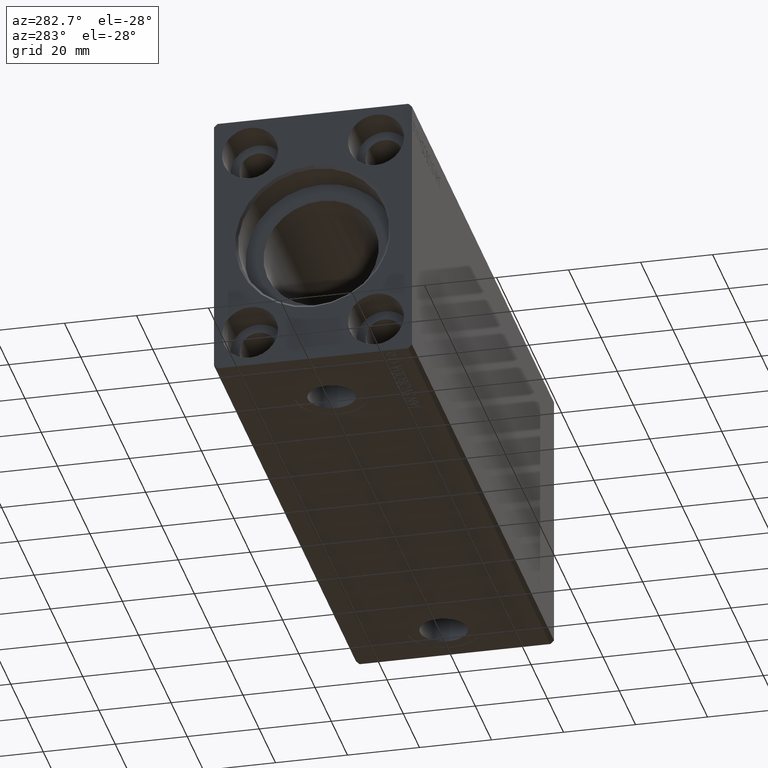
[diagram: clean part render]
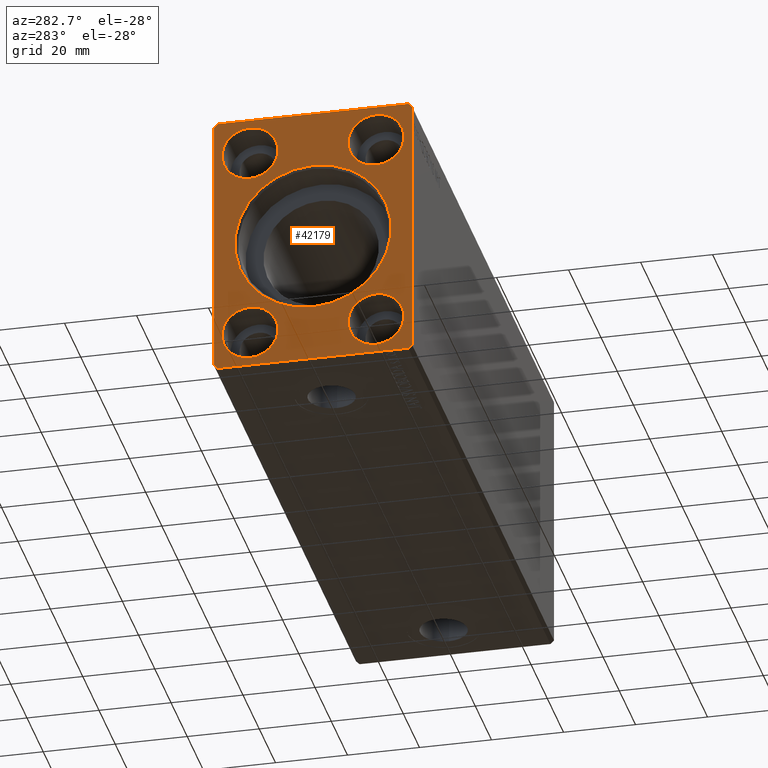
[diagram: same view with one face highlighted and labeled with its STEP entity id]
A machine part, auxiliary view. The second image highlights one B-rep face of the part: STEP entity #42179.
In plain terms, the highlighted planar face has unit normal (1, 0, 0).
Its self-contained STEP definition (entity closure, byte-faithful):
#192 = DIRECTION ( 'NONE',  ( 0.000000000000000000, 0.000000000000000000, -1.000000000000000000 ) ) ;
#610 = VERTEX_POINT ( 'NONE', #29246 ) ;
#707 = FACE_BOUND ( 'NONE', #41639, .T. ) ;
#709 = VECTOR ( 'NONE', #12497, 1000.000000000000114 ) ;
#858 = DIRECTION ( 'NONE',  ( 0.000000000000000000, 1.000000000000000000, 0.000000000000000000 ) ) ;
#918 = CARTESIAN_POINT ( 'NONE',  ( 0.000000000000000000, -26.50000000000000355, -37.49999999999999289 ) ) ;
#1481 = AXIS2_PLACEMENT_3D ( 'NONE', #34111, #15094, #17706 ) ;
#1669 = EDGE_CURVE ( 'NONE', #37311, #24279, #15018, .T. ) ;
#1952 = DIRECTION ( 'NONE',  ( 1.000000000000000000, -0.000000000000000000, -0.000000000000000000 ) ) ;
#2165 = DIRECTION ( 'NONE',  ( 0.000000000000000000, 0.000000000000000000, -1.000000000000000000 ) ) ;
#2384 = CARTESIAN_POINT ( 'NONE',  ( 0.000000000000000000, 27.50000000000000355, 36.50000000000000711 ) ) ;
#2666 = ORIENTED_EDGE ( 'NONE', *, *, #34183, .T. ) ;
#3181 = DIRECTION ( 'NONE',  ( 0.000000000000000000, 0.7071067811865474617, 0.7071067811865474617 ) ) ;
#3619 = EDGE_CURVE ( 'NONE', #12198, #610, #31618, .T. ) ;
#3938 = ORIENTED_EDGE ( 'NONE', *, *, #30078, .T. ) ;
#4201 = CARTESIAN_POINT ( 'NONE',  ( 0.000000000000000000, 26.50000000000000711, -37.49999999999999289 ) ) ;
#4592 = CARTESIAN_POINT ( 'NONE',  ( 0.000000000000000000, -17.50000000000000000, 27.50000000000000000 ) ) ;
#4674 = EDGE_CURVE ( 'NONE', #40892, #35269, #23405, .T. ) ;
#5290 = CARTESIAN_POINT ( 'NONE',  ( 0.000000000000000000, -17.50000000000000000, -35.25000000000000000 ) ) ;
#5375 = CARTESIAN_POINT ( 'NONE',  ( 0.000000000000000000, 0.000000000000000000, 21.69999999999999574 ) ) ;
#5617 = CARTESIAN_POINT ( 'NONE',  ( 0.000000000000000000, 17.50000000000000000, 27.50000000000000000 ) ) ;
#5624 = CARTESIAN_POINT ( 'NONE',  ( 0.000000000000000000, 27.50000000000000355, 36.50000000000000711 ) ) ;
#5876 = ORIENTED_EDGE ( 'NONE', *, *, #34013, .F. ) ;
#5967 = LINE ( 'NONE', #7395, #14133 ) ;
#6266 = EDGE_CURVE ( 'NONE', #33075, #15880, #35135, .T. ) ;
#6360 = DIRECTION ( 'NONE',  ( 1.000000000000000000, -0.000000000000000000, -0.000000000000000000 ) ) ;
#6649 = CARTESIAN_POINT ( 'NONE',  ( 0.000000000000000000, -17.50000000000000000, -27.50000000000000000 ) ) ;
#6738 = VERTEX_POINT ( 'NONE', #27462 ) ;
#7395 = CARTESIAN_POINT ( 'NONE',  ( 0.000000000000000000, -26.50000000000000711, 37.50000000000000711 ) ) ;
#7513 = EDGE_LOOP ( 'NONE', ( #2666, #10272 ) ) ;
#7836 = CIRCLE ( 'NONE', #40216, 7.750000000000003553 ) ;
#8425 = PLANE ( 'NONE',  #8712 ) ;
#8551 = ORIENTED_EDGE ( 'NONE', *, *, #9999, .F. ) ;
#8712 = AXIS2_PLACEMENT_3D ( 'NONE', #14462, #14680, #18114 ) ;
#8879 = VERTEX_POINT ( 'NONE', #40616 ) ;
#8931 = EDGE_CURVE ( 'NONE', #40848, #6738, #39280, .T. ) ;
#9799 = LINE ( 'NONE', #28988, #17183 ) ;
#9865 = DIRECTION ( 'NONE',  ( 0.000000000000000000, 0.000000000000000000, -1.000000000000000000 ) ) ;
#9984 = VERTEX_POINT ( 'NONE', #37967 ) ;
#9999 = EDGE_CURVE ( 'NONE', #610, #12198, #13140, .T. ) ;
#10272 = ORIENTED_EDGE ( 'NONE', *, *, #1669, .T. ) ;
#10616 = DIRECTION ( 'NONE',  ( 1.000000000000000000, 0.000000000000000000, 0.000000000000000000 ) ) ;
#10688 = CARTESIAN_POINT ( 'NONE',  ( 0.000000000000000000, 17.50000000000000000, -27.50000000000000000 ) ) ;
#10901 = ORIENTED_EDGE ( 'NONE', *, *, #6266, .F. ) ;
#11003 = ORIENTED_EDGE ( 'NONE', *, *, #38477, .F. ) ;
#11334 = ORIENTED_EDGE ( 'NONE', *, *, #29483, .F. ) ;
#12125 = DIRECTION ( 'NONE',  ( 0.000000000000000000, 0.000000000000000000, -1.000000000000000000 ) ) ;
#12198 = VERTEX_POINT ( 'NONE', #21820 ) ;
#12497 = DIRECTION ( 'NONE',  ( 0.000000000000000000, -0.7071067811865474617, 0.7071067811865474617 ) ) ;
#12662 = VERTEX_POINT ( 'NONE', #27267 ) ;
#12878 = DIRECTION ( 'NONE',  ( 1.000000000000000000, 0.000000000000000000, 0.000000000000000000 ) ) ;
#13076 = EDGE_CURVE ( 'NONE', #12662, #23254, #25602, .T. ) ;
#13140 = CIRCLE ( 'NONE', #1481, 7.750000000000003553 ) ;
#13208 = DIRECTION ( 'NONE',  ( 0.000000000000000000, 0.000000000000000000, -1.000000000000000000 ) ) ;
#13769 = LINE ( 'NONE', #34042, #20900 ) ;
#14133 = VECTOR ( 'NONE', #17291, 1000.000000000000114 ) ;
#14462 = CARTESIAN_POINT ( 'NONE',  ( 0.000000000000000000, 0.000000000000000000, 0.000000000000000000 ) ) ;
#14680 = DIRECTION ( 'NONE',  ( 1.000000000000000000, 0.000000000000000000, 0.000000000000000000 ) ) ;
#14892 = DIRECTION ( 'NONE',  ( 0.000000000000000000, 0.000000000000000000, 1.000000000000000000 ) ) ;
#15018 = CIRCLE ( 'NONE', #30182, 21.69999999999999574 ) ;
#15094 = DIRECTION ( 'NONE',  ( -1.000000000000000000, 0.000000000000000000, 0.000000000000000000 ) ) ;
#15305 = CARTESIAN_POINT ( 'NONE',  ( 0.000000000000000000, -17.50000000000000000, -19.74999999999999645 ) ) ;
#15432 = EDGE_CURVE ( 'NONE', #23210, #20871, #15885, .T. ) ;
#15785 = AXIS2_PLACEMENT_3D ( 'NONE', #6649, #35750, #192 ) ;
#15817 = DIRECTION ( 'NONE',  ( 0.000000000000000000, -1.000000000000000000, 0.000000000000000000 ) ) ;
#15880 = VERTEX_POINT ( 'NONE', #21430 ) ;
#15885 = CIRCLE ( 'NONE', #15785, 7.750000000000003553 ) ;
#17019 = ORIENTED_EDGE ( 'NONE', *, *, #36037, .T. ) ;
#17183 = VECTOR ( 'NONE', #15817, 1000.000000000000000 ) ;
#17207 = LINE ( 'NONE', #30377, #39498 ) ;
#17291 = DIRECTION ( 'NONE',  ( 0.000000000000000000, -0.7071067811865474617, -0.7071067811865474617 ) ) ;
#17483 = FACE_BOUND ( 'NONE', #31274, .T. ) ;
#17527 = EDGE_CURVE ( 'NONE', #15880, #9984, #9799, .T. ) ;
#17706 = DIRECTION ( 'NONE',  ( 0.000000000000000000, 0.000000000000000000, 1.000000000000000000 ) ) ;
#18114 = DIRECTION ( 'NONE',  ( 0.000000000000000000, 0.000000000000000000, -1.000000000000000000 ) ) ;
#18145 = CIRCLE ( 'NONE', #40976, 7.750000000000003553 ) ;
#18917 = CARTESIAN_POINT ( 'NONE',  ( 0.000000000000000000, 0.000000000000000000, 0.000000000000000000 ) ) ;
#18949 = CARTESIAN_POINT ( 'NONE',  ( 0.000000000000000000, 27.50000000000000711, -36.49999999999999289 ) ) ;
#19491 = CARTESIAN_POINT ( 'NONE',  ( 0.000000000000000000, 17.50000000000000000, 35.25000000000000000 ) ) ;
#19530 = CARTESIAN_POINT ( 'NONE',  ( 0.000000000000000000, 26.50000000000000711, -37.49999999999999289 ) ) ;
#19596 = CIRCLE ( 'NONE', #32694, 7.750000000000003553 ) ;
#19860 = LINE ( 'NONE', #26771, #26597 ) ;
#20453 = DIRECTION ( 'NONE',  ( -1.000000000000000000, 0.000000000000000000, 0.000000000000000000 ) ) ;
#20681 = AXIS2_PLACEMENT_3D ( 'NONE', #31755, #28304, #12125 ) ;
#20871 = VERTEX_POINT ( 'NONE', #5290 ) ;
#20900 = VECTOR ( 'NONE', #27351, 1000.000000000000000 ) ;
#21209 = ORIENTED_EDGE ( 'NONE', *, *, #15432, .T. ) ;
#21430 = CARTESIAN_POINT ( 'NONE',  ( 0.000000000000000000, 26.50000000000000355, 37.50000000000000711 ) ) ;
#21691 = EDGE_LOOP ( 'NONE', ( #21209, #3938 ) ) ;
#21820 = CARTESIAN_POINT ( 'NONE',  ( 0.000000000000000000, 17.50000000000000000, -35.25000000000000000 ) ) ;
#22075 = CARTESIAN_POINT ( 'NONE',  ( 0.000000000000000000, -17.50000000000000000, -27.50000000000000000 ) ) ;
#22098 = CARTESIAN_POINT ( 'NONE',  ( 0.000000000000000000, -17.50000000000000000, 35.25000000000000000 ) ) ;
#22242 = ORIENTED_EDGE ( 'NONE', *, *, #17527, .F. ) ;
#23210 = VERTEX_POINT ( 'NONE', #15305 ) ;
#23254 = VERTEX_POINT ( 'NONE', #22098 ) ;
#23280 = ORIENTED_EDGE ( 'NONE', *, *, #4674, .F. ) ;
#23405 = LINE ( 'NONE', #19530, #28903 ) ;
#23834 = DIRECTION ( 'NONE',  ( -1.000000000000000000, 0.000000000000000000, 0.000000000000000000 ) ) ;
#24279 = VERTEX_POINT ( 'NONE', #5375 ) ;
#25602 = CIRCLE ( 'NONE', #27001, 7.750000000000003553 ) ;
#26597 = VECTOR ( 'NONE', #39926, 1000.000000000000000 ) ;
#26771 = CARTESIAN_POINT ( 'NONE',  ( 0.000000000000000000, -27.50000000000000711, 36.50000000000000711 ) ) ;
#27001 = AXIS2_PLACEMENT_3D ( 'NONE', #4592, #27634, #14892 ) ;
#27267 = CARTESIAN_POINT ( 'NONE',  ( 0.000000000000000000, -17.50000000000000000, 19.74999999999999645 ) ) ;
#27351 = DIRECTION ( 'NONE',  ( 0.000000000000000000, -4.752667057470704875E-17, 1.000000000000000000 ) ) ;
#27462 = CARTESIAN_POINT ( 'NONE',  ( 0.000000000000000000, 17.50000000000000000, 19.74999999999999645 ) ) ;
#27628 = DIRECTION ( 'NONE',  ( 0.000000000000000000, 0.7071067811865451302, -0.7071067811865500152 ) ) ;
#27634 = DIRECTION ( 'NONE',  ( -1.000000000000000000, 0.000000000000000000, 0.000000000000000000 ) ) ;
#28045 = LINE ( 'NONE', #30865, #30767 ) ;
#28245 = CARTESIAN_POINT ( 'NONE',  ( 0.000000000000000000, 2.657483554149755949E-15, -21.69999999999999574 ) ) ;
#28304 = DIRECTION ( 'NONE',  ( 1.000000000000000000, -0.000000000000000000, -0.000000000000000000 ) ) ;
#28806 = ORIENTED_EDGE ( 'NONE', *, *, #33278, .F. ) ;
#28903 = VECTOR ( 'NONE', #3181, 1000.000000000000114 ) ;
#28965 = ORIENTED_EDGE ( 'NONE', *, *, #8931, .T. ) ;
#28988 = CARTESIAN_POINT ( 'NONE',  ( 0.000000000000000000, 26.50000000000000355, 37.50000000000000711 ) ) ;
#29190 = CIRCLE ( 'NONE', #32631, 21.69999999999999574 ) ;
#29246 = CARTESIAN_POINT ( 'NONE',  ( 0.000000000000000000, 17.50000000000000000, -19.74999999999999645 ) ) ;
#29483 = EDGE_CURVE ( 'NONE', #37276, #40892, #17207, .T. ) ;
#30078 = EDGE_CURVE ( 'NONE', #20871, #23210, #7836, .T. ) ;
#30182 = AXIS2_PLACEMENT_3D ( 'NONE', #33041, #10616, #13208 ) ;
#30227 = FACE_BOUND ( 'NONE', #39451, .T. ) ;
#30377 = CARTESIAN_POINT ( 'NONE',  ( 0.000000000000000000, -26.50000000000000355, -37.49999999999999289 ) ) ;
#30714 = CARTESIAN_POINT ( 'NONE',  ( 0.000000000000000000, -27.50000000000000711, 36.50000000000000711 ) ) ;
#30767 = VECTOR ( 'NONE', #27628, 1000.000000000000114 ) ;
#30865 = CARTESIAN_POINT ( 'NONE',  ( 0.000000000000000000, -27.50000000000000355, -36.49999999999998579 ) ) ;
#31194 = ORIENTED_EDGE ( 'NONE', *, *, #3619, .F. ) ;
#31274 = EDGE_LOOP ( 'NONE', ( #28965, #17019 ) ) ;
#31290 = FACE_BOUND ( 'NONE', #21691, .T. ) ;
#31618 = CIRCLE ( 'NONE', #41946, 7.750000000000003553 ) ;
#31755 = CARTESIAN_POINT ( 'NONE',  ( 0.000000000000000000, 17.50000000000000000, 27.50000000000000000 ) ) ;
#32631 = AXIS2_PLACEMENT_3D ( 'NONE', #18917, #12878, #9865 ) ;
#32694 = AXIS2_PLACEMENT_3D ( 'NONE', #5617, #1952, #2165 ) ;
#33003 = ORIENTED_EDGE ( 'NONE', *, *, #42173, .F. ) ;
#33041 = CARTESIAN_POINT ( 'NONE',  ( 0.000000000000000000, 0.000000000000000000, 0.000000000000000000 ) ) ;
#33075 = VERTEX_POINT ( 'NONE', #2384 ) ;
#33212 = ORIENTED_EDGE ( 'NONE', *, *, #13076, .F. ) ;
#33278 = EDGE_CURVE ( 'NONE', #35269, #33075, #13769, .T. ) ;
#33409 = DIRECTION ( 'NONE',  ( 0.000000000000000000, 0.000000000000000000, 1.000000000000000000 ) ) ;
#34013 = EDGE_CURVE ( 'NONE', #23254, #12662, #18145, .T. ) ;
#34042 = CARTESIAN_POINT ( 'NONE',  ( 0.000000000000000000, 27.50000000000000711, -36.49999999999999289 ) ) ;
#34111 = CARTESIAN_POINT ( 'NONE',  ( 0.000000000000000000, 17.50000000000000000, -27.50000000000000000 ) ) ;
#34183 = EDGE_CURVE ( 'NONE', #24279, #37311, #29190, .T. ) ;
#34305 = FACE_OUTER_BOUND ( 'NONE', #39634, .T. ) ;
#34567 = VERTEX_POINT ( 'NONE', #30714 ) ;
#34725 = FACE_BOUND ( 'NONE', #7513, .T. ) ;
#34822 = ORIENTED_EDGE ( 'NONE', *, *, #42257, .F. ) ;
#35135 = LINE ( 'NONE', #5624, #709 ) ;
#35269 = VERTEX_POINT ( 'NONE', #18949 ) ;
#35750 = DIRECTION ( 'NONE',  ( 1.000000000000000000, -0.000000000000000000, -0.000000000000000000 ) ) ;
#36037 = EDGE_CURVE ( 'NONE', #6738, #40848, #19596, .T. ) ;
#36855 = CARTESIAN_POINT ( 'NONE',  ( 0.000000000000000000, -17.50000000000000000, 27.50000000000000000 ) ) ;
#37002 = DIRECTION ( 'NONE',  ( 0.000000000000000000, 0.000000000000000000, 1.000000000000000000 ) ) ;
#37276 = VERTEX_POINT ( 'NONE', #918 ) ;
#37311 = VERTEX_POINT ( 'NONE', #28245 ) ;
#37967 = CARTESIAN_POINT ( 'NONE',  ( 0.000000000000000000, -26.50000000000000711, 37.50000000000000711 ) ) ;
#38477 = EDGE_CURVE ( 'NONE', #9984, #34567, #5967, .T. ) ;
#38689 = DIRECTION ( 'NONE',  ( 0.000000000000000000, 0.000000000000000000, -1.000000000000000000 ) ) ;
#39280 = CIRCLE ( 'NONE', #20681, 7.750000000000003553 ) ;
#39451 = EDGE_LOOP ( 'NONE', ( #5876, #33212 ) ) ;
#39498 = VECTOR ( 'NONE', #858, 1000.000000000000000 ) ;
#39634 = EDGE_LOOP ( 'NONE', ( #10901, #28806, #23280, #11334, #34822, #33003, #11003, #22242 ) ) ;
#39926 = DIRECTION ( 'NONE',  ( 0.000000000000000000, 4.752667057470705491E-17, -1.000000000000000000 ) ) ;
#40216 = AXIS2_PLACEMENT_3D ( 'NONE', #22075, #6360, #38689 ) ;
#40616 = CARTESIAN_POINT ( 'NONE',  ( 0.000000000000000000, -27.50000000000000355, -36.49999999999998579 ) ) ;
#40848 = VERTEX_POINT ( 'NONE', #19491 ) ;
#40892 = VERTEX_POINT ( 'NONE', #4201 ) ;
#40976 = AXIS2_PLACEMENT_3D ( 'NONE', #36855, #20453, #33409 ) ;
#41639 = EDGE_LOOP ( 'NONE', ( #8551, #31194 ) ) ;
#41946 = AXIS2_PLACEMENT_3D ( 'NONE', #10688, #23834, #37002 ) ;
#42173 = EDGE_CURVE ( 'NONE', #34567, #8879, #19860, .T. ) ;
#42179 = ADVANCED_FACE ( 'NONE', ( #30227, #707, #34725, #34305, #31290, #17483 ), #8425, .F. ) ;
#42257 = EDGE_CURVE ( 'NONE', #8879, #37276, #28045, .T. ) ;